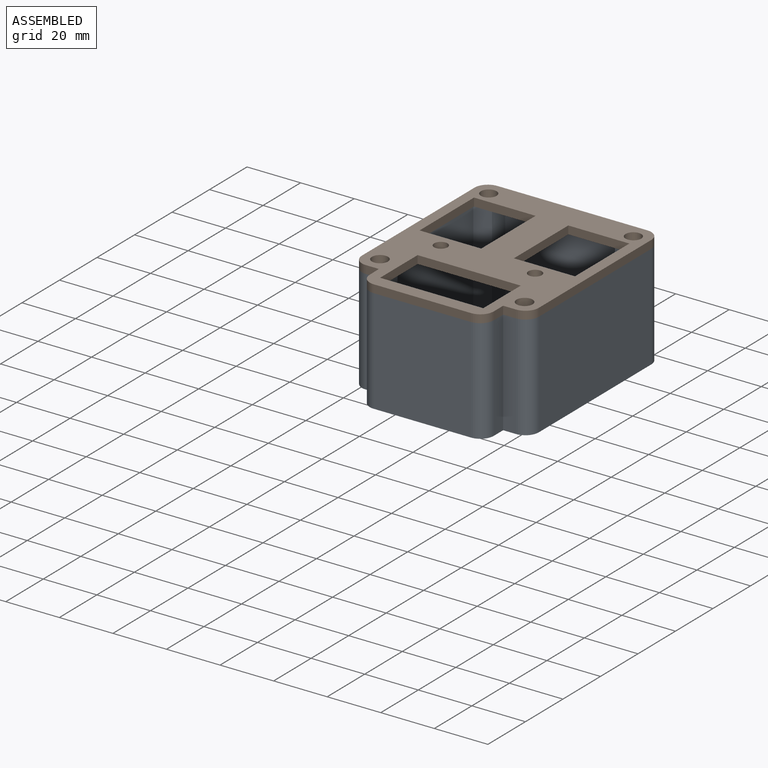
[diagram: assembled view]
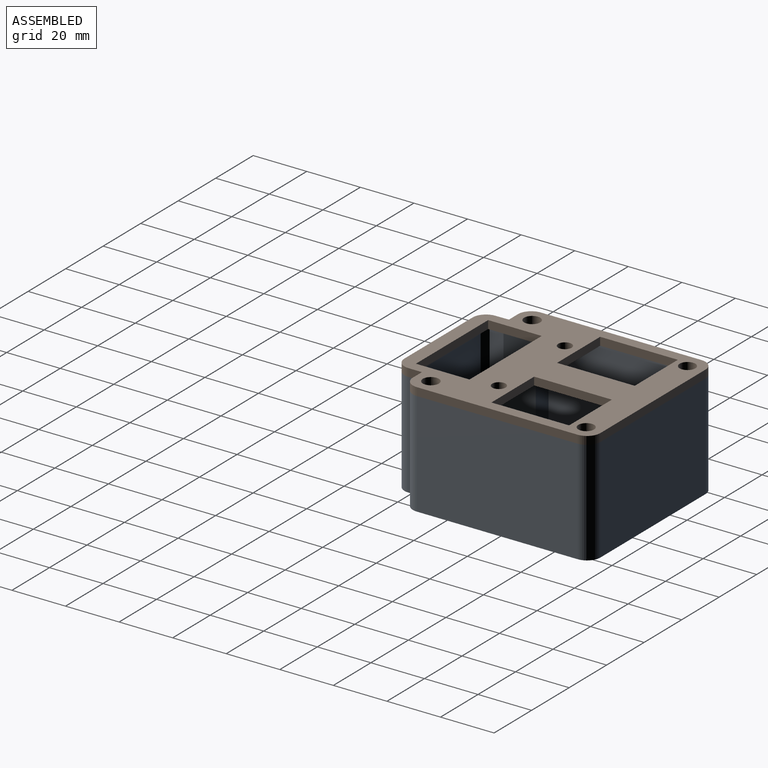
[diagram: assembled view, second angle]
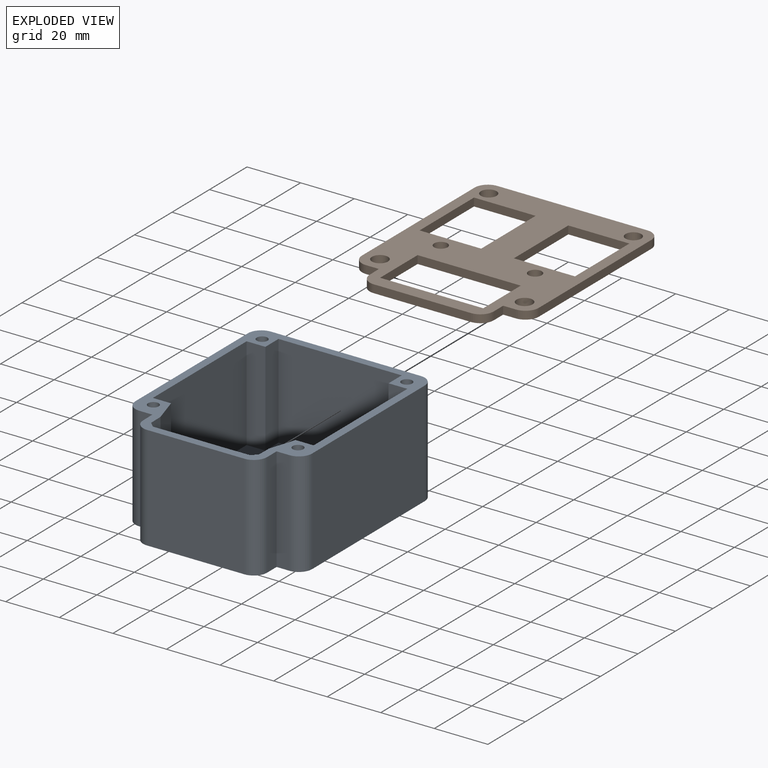
[diagram: exploded view]
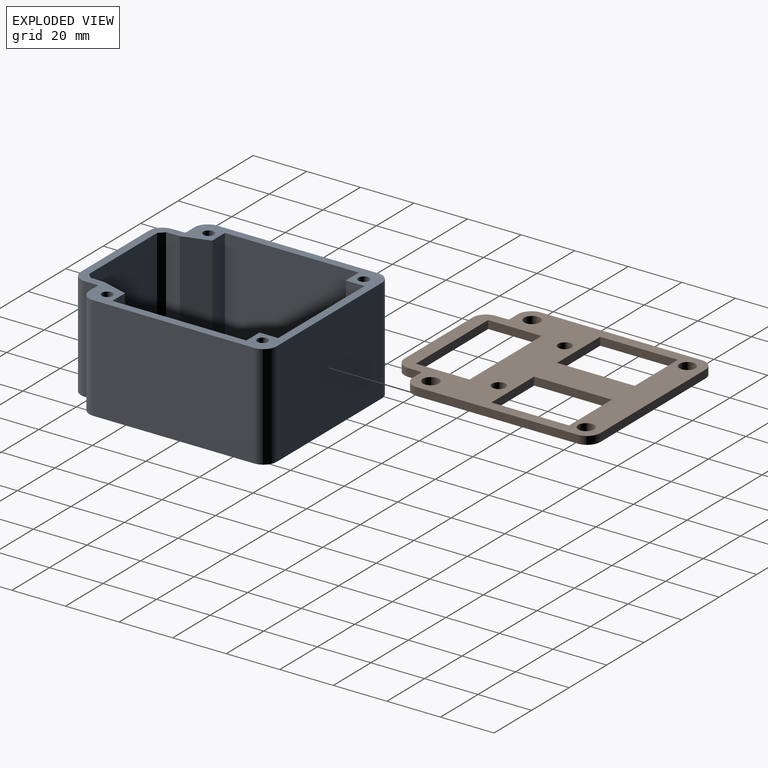
[diagram: exploded view, second angle]
ASSEMBLY  parts=2 mates=3
PART A: 41 faces, bbox 66x80x39 mm
  f0: cylinder r=5mm len=39mm, axis (0,0,-1), area 306.3mm2, adj f1,f33,f34,f40
  f1: plane 39x5mm, normal (1,0,0), area 195mm2, adj f0,f2,f34,f40
  f2: plane 39x4.8mm, normal (0,-1,0), area 187.2mm2, adj f1,f3,f34,f40
  f3: cylinder r=5mm len=39mm, axis (0,0,-1), area 306.3mm2, adj f2,f4,f34,f40
  f4: plane 60x39mm, normal (1,0,0), area 2340mm2, adj f3,f5,f34,f40
  f5: cylinder r=5mm len=39mm, axis (0,0,-1), area 306.3mm2, adj f4,f6,f34,f40
  f6: plane 56x39mm, normal (0,1,0), area 2184mm2, adj f5,f7,f34,f40
  f7: cylinder r=5mm len=39mm, axis (0,0,-1), area 306.3mm2, adj f6,f8,f34,f40
  f8: plane 60x39mm, normal (-1,0,0), area 2340mm2, adj f7,f9,f34,f40
  f9: cylinder r=5mm len=39mm, axis (0,0,-1), area 306.3mm2, adj f8,f10,f34,f40
  f10: plane 39x4.8mm, normal (0,-1,0), area 187.1mm2, adj f9,f11,f34,f40
  f11: plane 39x5.1mm, normal (-1,-0.02,0), area 199mm2, adj f10,f12,f34,f40
  f12: cylinder r=5mm len=39mm, axis (0,0,-1), area 302.4mm2, adj f11,f33,f34,f40
  f13: plane 35x6.8mm, normal (0,1,0), area 237.9mm2, adj f14,f28,f34,f39
  f14: plane 50x35mm, normal (1,0,0), area 1750mm2, adj f13,f15,f34,f39
  f15: plane 35x7mm, normal (0,-1,0), area 245mm2, adj f14,f16,f34,f39
  f16: plane 35x7mm, normal (1,0,0), area 245mm2, adj f15,f17,f34,f39
  f17: plane 46x35mm, normal (0,-1,0), area 1610mm2, adj f16,f18,f34,f39
  f18: plane 35x7mm, normal (-1,0,0), area 245mm2, adj f17,f19,f34,f39
  f19: plane 35x7mm, normal (0,-1,0), area 245mm2, adj f18,f20,f34,f39
  f20: plane 50x35mm, normal (-1,0,0), area 1750mm2, adj f19,f21,f34,f39
  f21: plane 35x6.8mm, normal (0,1,0), area 237.9mm2, adj f20,f22,f34,f39
  f22: plane 35x9.94mm, normal (-0.96,0.29,0), area 363.4mm2, adj f21,f23,f34,f39
  f23: plane 35x5.1mm, normal (-1,0.02,0), area 178.6mm2, adj f22,f24,f34,f39
  f24: plane 35x2mm, normal (-0.7,0.71,0), area 98mm2, adj f23,f25,f34,f39
  f25: plane 36.2x35mm, normal (0,1,0), area 1267mm2, adj f24,f26,f34,f39
  f26: plane 35x2mm, normal (0.7,0.71,0), area 98mm2, adj f25,f27,f34,f39
  f27: plane 35x5.1mm, normal (1,0.02,0), area 178.6mm2, adj f26,f28,f34,f39
  f28: plane 35x9.94mm, normal (0.96,0.29,0), area 363.4mm2, adj f13,f27,f34,f39
  f29: cylinder r=2mm len=35mm, axis (0,0,-1), area 439.8mm2, adj f34,f38
  f30: cylinder r=2mm len=35mm, axis (0,0,-1), area 439.8mm2, adj f34,f37
  f31: cylinder r=2mm len=35mm, axis (0,0,-1), area 439.8mm2, adj f34,f36
  f32: cylinder r=2mm len=35mm, axis (0,0,-1), area 439.8mm2, adj f34,f35
  f33: plane 39x36.3mm, normal (0,-1,0), area 1415.7mm2, adj f0,f12,f34,f40
  f34: plane 80x66mm, normal (0,0,1), area 967mm2, adj f0,f1,f2,f3,f4,f5,f6,f7
  f35: plane 4x4mm, normal (0,0,1), area 12.6mm2, adj f32
  f36: plane 4x4mm, normal (0,0,1), area 12.6mm2, adj f31
  f37: plane 4x4mm, normal (0,0,1), area 12.6mm2, adj f30
  f38: plane 4x4mm, normal (0,0,1), area 12.6mm2, adj f29
  f39: plane 74x60mm, normal (0,0,1), area 4033.8mm2, adj f13,f14,f15,f16,f17,f18,f19,f20
  f40: plane 80x66mm, normal (0,0,-1), area 5051.1mm2, adj f0,f1,f2,f3,f4,f5,f6,f7
PART B: 34 faces, bbox 66x80x3 mm
  f0: plane 38.5x3mm, normal (0,1,0), area 115.5mm2, adj f1,f31,f32,f33
  f1: plane 20x3mm, normal (1,0,0), area 60mm2, adj f0,f2,f32,f33
  f2: plane 38.5x3mm, normal (0,-1,0), area 115.5mm2, adj f1,f31,f32,f33
  f3: plane 23x3mm, normal (0,1,0), area 69mm2, adj f4,f22,f32,f33
  f4: plane 29x3mm, normal (1,0,0), area 87mm2, adj f3,f5,f32,f33
  f5: plane 23x3mm, normal (0,-1,0), area 69mm2, adj f4,f22,f32,f33
  f6: cylinder r=5mm len=5mm, axis (0,0,-1), area 23.6mm2, adj f7,f23,f32,f33
  f7: plane 5x3mm, normal (1,0,0), area 15mm2, adj f6,f8,f32,f33
  f8: plane 4.8x3mm, normal (0,-1,0), area 14.4mm2, adj f7,f9,f32,f33
  f9: cylinder r=5mm len=5mm, axis (0,0,-1), area 23.6mm2, adj f8,f10,f32,f33
  f10: plane 60x3mm, normal (1,0,0), area 180mm2, adj f9,f11,f32,f33
  f11: cylinder r=5mm len=5mm, axis (0,0,-1), area 23.6mm2, adj f10,f12,f32,f33
  f12: plane 56x3mm, normal (0,1,0), area 168mm2, adj f11,f13,f32,f33
  f13: cylinder r=5mm len=5mm, axis (0,0,-1), area 23.6mm2, adj f12,f14,f32,f33
  f14: plane 60x3mm, normal (-1,0,0), area 180mm2, adj f13,f15,f32,f33
  f15: cylinder r=5mm len=5mm, axis (0,0,-1), area 23.6mm2, adj f14,f16,f32,f33
  f16: plane 4.8x3mm, normal (0,-1,0), area 14.4mm2, adj f15,f17,f32,f33
  f17: plane 5.1x3mm, normal (-1,-0.02,0), area 15.3mm2, adj f16,f18,f32,f33
  f18: cylinder r=5mm len=5mm, axis (0,0,-1), area 23.3mm2, adj f17,f23,f32,f33
  f19: plane 22.8x3mm, normal (0,-1,0), area 68.4mm2, adj f20,f30,f32,f33
  f20: plane 29x3mm, normal (-1,0,0), area 87mm2, adj f19,f21,f32,f33
  f21: plane 22.8x3mm, normal (0,1,0), area 68.4mm2, adj f20,f30,f32,f33
  f22: plane 29x3mm, normal (-1,0,0), area 87mm2, adj f3,f5,f32,f33
  f23: plane 36.3x3mm, normal (0,-1,0), area 108.9mm2, adj f6,f18,f32,f33
  f24: cylinder r=3mm len=6mm, axis (0,0,-1), area 56.5mm2, adj f32,f33
  f25: cylinder r=2.5mm len=5mm, axis (0,0,-1), area 47.1mm2, adj f32,f33
  f26: cylinder r=2.93mm len=5.86mm, axis (0,0,-1), area 55.2mm2, adj f32,f33
  f27: cylinder r=3mm len=6mm, axis (0,0,-1), area 56.5mm2, adj f32,f33
  f28: cylinder r=2.93mm len=5.86mm, axis (0,0,-1), area 55.2mm2, adj f32,f33
  f29: cylinder r=2.5mm len=5mm, axis (0,0,-1), area 47.1mm2, adj f32,f33
  f30: plane 29x3mm, normal (1,0,0), area 87mm2, adj f19,f21,f32,f33
  f31: plane 20x3mm, normal (-1,0,0), area 60mm2, adj f0,f2,f32,f33
  f32: plane 80x66mm, normal (0,0,1), area 2803.1mm2, adj f0,f1,f2,f3,f4,f5,f6,f7
  f33: plane 80x66mm, normal (0,0,-1), area 2803.1mm2, adj f0,f1,f2,f3,f4,f5,f6,f7
PLACE A t=(109.32,-24.09,-65.65)mm
PLACE B t=(109.32,-24.09,-30.65)mm
MATE planar A.f33 <-> B.f23  axis (0,-1,0) through (132.37,-24.09,-50.15)mm
MATE planar A.f0 <-> B.f6  axis (0,0,-1) through (150.52,-19.09,-30.65)mm
MATE planar B.f10 <-> A.f4  axis (1,0,0) through (165.32,20.91,-27.65)mm
